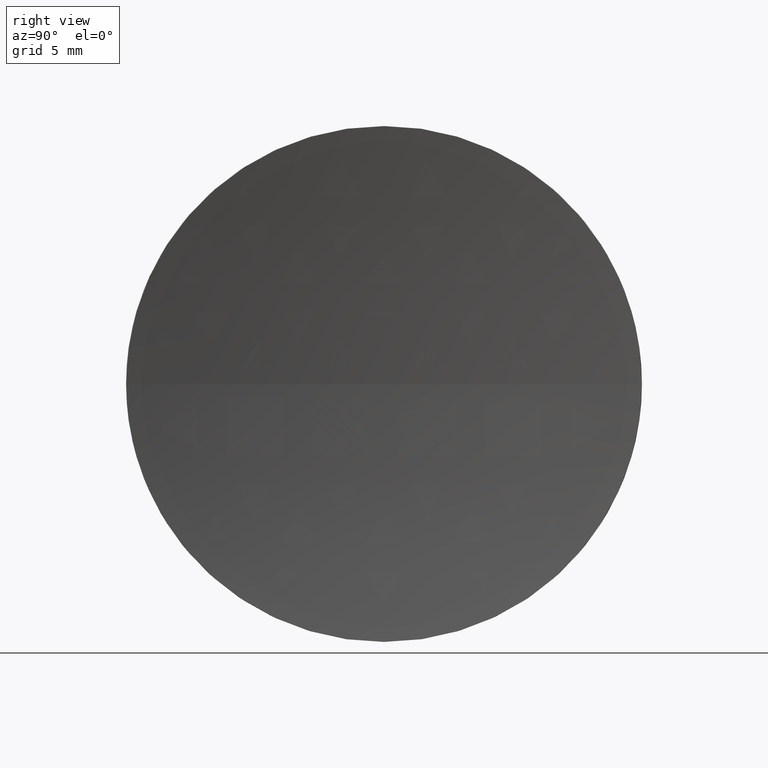
[diagram: clean part render]
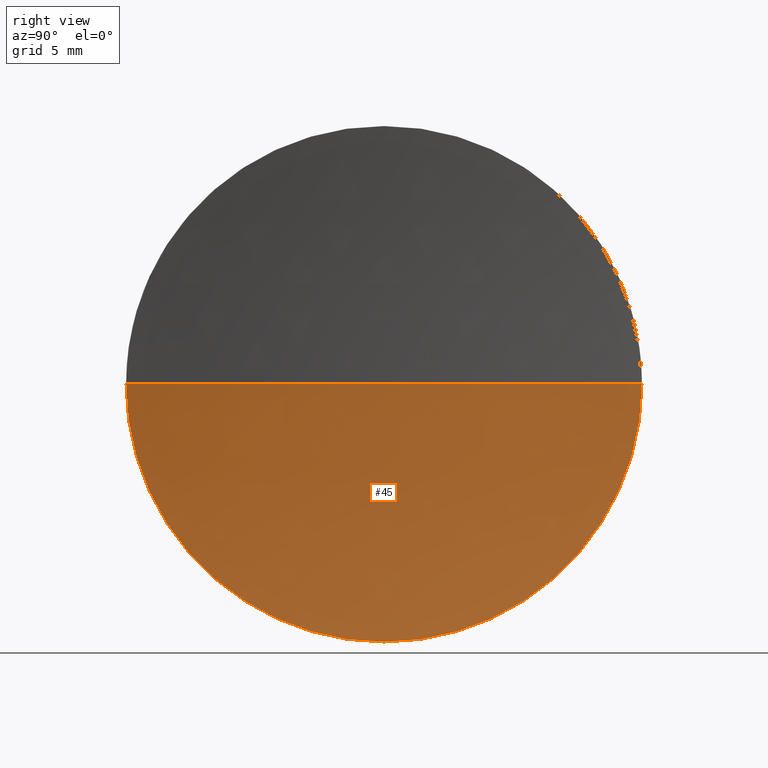
[diagram: same view with one face highlighted and labeled with its STEP entity id]
A machine part, right view. The second image highlights one B-rep face of the part: STEP entity #45.
In plain terms, the highlighted spherical surface has radius 129.24 mm.
Its self-contained STEP definition (entity closure, byte-faithful):
#1 = EDGE_CURVE ( 'NONE', #37, #3, #143, .T. ) ;
#3 = VERTEX_POINT ( 'NONE', #162 ) ;
#8 = CARTESIAN_POINT ( 'NONE',  ( 245.6519316741596400, 65.15563045701519200, 0.0000000000000000000 ) ) ;
#9 = DIRECTION ( 'NONE',  ( 0.0000000000000000000, 0.0000000000000000000, 1.000000000000000000 ) ) ;
#12 = EDGE_LOOP ( 'NONE', ( #107, #130, #92, #186 ) ) ;
#16 = DIRECTION ( 'NONE',  ( 0.0000000000000000000, 0.0000000000000000000, 1.000000000000000000 ) ) ;
#17 = AXIS2_PLACEMENT_3D ( 'NONE', #8, #106, #24 ) ;
#24 = DIRECTION ( 'NONE',  ( 0.0000000000000000000, -1.000000000000000000, -1.224646799147353500E-016 ) ) ;
#36 = AXIS2_PLACEMENT_3D ( 'NONE', #52, #9, #78 ) ;
#37 = VERTEX_POINT ( 'NONE', #176 ) ;
#43 = DIRECTION ( 'NONE',  ( -1.000000000000000000, 0.0000000000000000000, 0.0000000000000000000 ) ) ;
#45 = ADVANCED_FACE ( 'NONE', ( #145 ), #180, .F. ) ;
#52 = CARTESIAN_POINT ( 'NONE',  ( 245.6519316741596400, 65.15563045701519200, 0.0000000000000000000 ) ) ;
#56 = CIRCLE ( 'NONE', #163, 20.00000000000000400 ) ;
#71 = CIRCLE ( 'NONE', #137, 129.2400000000000100 ) ;
#78 = DIRECTION ( 'NONE',  ( 0.0000000000000000000, -1.000000000000000000, 0.0000000000000000000 ) ) ;
#80 = DIRECTION ( 'NONE',  ( 0.0000000000000000000, 0.0000000000000000000, -1.000000000000000000 ) ) ;
#84 = DIRECTION ( 'NONE',  ( -1.000000000000000000, -0.0000000000000000000, -0.0000000000000000000 ) ) ;
#85 = DIRECTION ( 'NONE',  ( 0.0000000000000000000, 0.0000000000000000000, 1.000000000000000000 ) ) ;
#92 = ORIENTED_EDGE ( 'NONE', *, *, #175, .F. ) ;
#98 = VERTEX_POINT ( 'NONE', #140 ) ;
#99 = CARTESIAN_POINT ( 'NONE',  ( 245.6519316741596400, 65.15563045701519200, 0.0000000000000000000 ) ) ;
#104 = CIRCLE ( 'NONE', #131, 20.00000000000000400 ) ;
#106 = DIRECTION ( 'NONE',  ( 0.0000000000000000000, -1.224646799147353200E-016, 1.000000000000000000 ) ) ;
#107 = ORIENTED_EDGE ( 'NONE', *, *, #115, .F. ) ;
#109 = DIRECTION ( 'NONE',  ( -1.000000000000000000, -0.0000000000000000000, -0.0000000000000000000 ) ) ;
#115 = EDGE_CURVE ( 'NONE', #37, #98, #104, .T. ) ;
#125 = CARTESIAN_POINT ( 'NONE',  ( 117.9688176770456600, 65.15563045701519200, 0.0000000000000000000 ) ) ;
#126 = CARTESIAN_POINT ( 'NONE',  ( 117.9688176770456800, 45.15563045701513500, 0.0000000000000000000 ) ) ;
#130 = ORIENTED_EDGE ( 'NONE', *, *, #1, .T. ) ;
#131 = AXIS2_PLACEMENT_3D ( 'NONE', #125, #84, #16 ) ;
#137 = AXIS2_PLACEMENT_3D ( 'NONE', #99, #80, #43 ) ;
#140 = CARTESIAN_POINT ( 'NONE',  ( 117.9688176770456600, 65.15563045701519200, -20.00000000000000400 ) ) ;
#143 = CIRCLE ( 'NONE', #17, 129.2400000000000100 ) ;
#145 = FACE_OUTER_BOUND ( 'NONE', #12, .T. ) ;
#149 = CARTESIAN_POINT ( 'NONE',  ( 117.9688176770456600, 65.15563045701519200, 0.0000000000000000000 ) ) ;
#162 = CARTESIAN_POINT ( 'NONE',  ( 116.4119316741596200, 65.15563045701517800, 0.0000000000000000000 ) ) ;
#163 = AXIS2_PLACEMENT_3D ( 'NONE', #149, #109, #85 ) ;
#169 = EDGE_CURVE ( 'NONE', #98, #171, #56, .T. ) ;
#171 = VERTEX_POINT ( 'NONE', #126 ) ;
#175 = EDGE_CURVE ( 'NONE', #171, #3, #71, .T. ) ;
#176 = CARTESIAN_POINT ( 'NONE',  ( 117.9688176770456800, 85.15563045701524900, 2.449293598294713200E-015 ) ) ;
#180 = SPHERICAL_SURFACE ( 'NONE', #36, 129.2400000000000100 ) ;
#186 = ORIENTED_EDGE ( 'NONE', *, *, #169, .F. ) ;